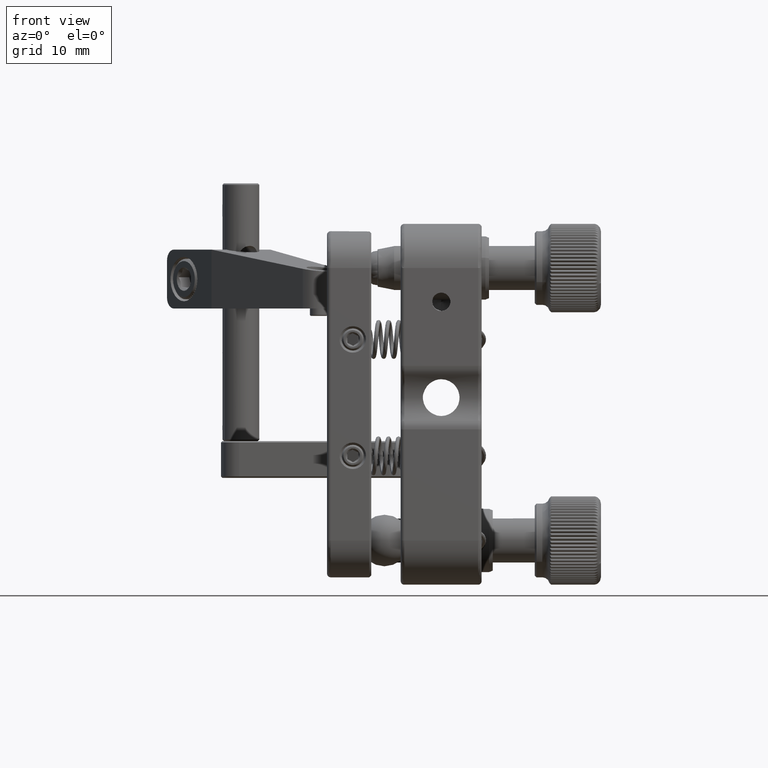
[diagram: clean part render]
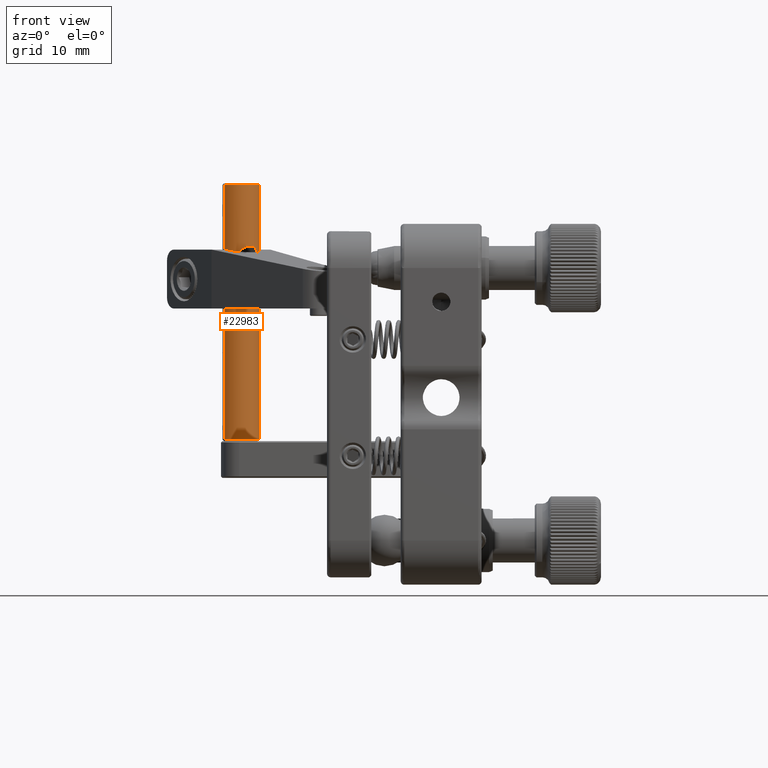
[diagram: same view with one face highlighted and labeled with its STEP entity id]
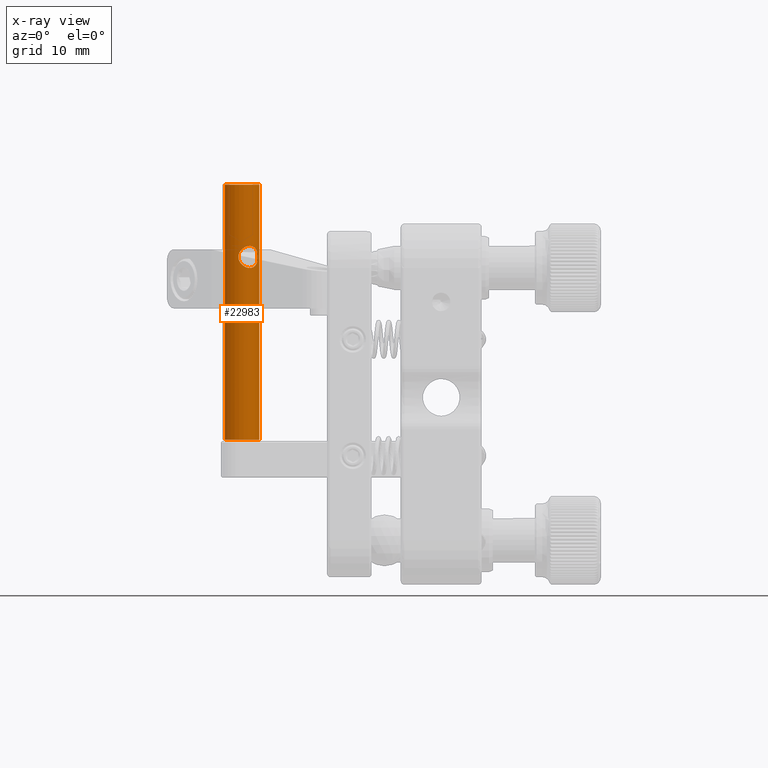
[diagram: x-ray of the same camera — body ghosted, the highlighted face saturated]
A machine part, front view. The second image highlights one B-rep face of the part: STEP entity #22983.
The next image is the same camera in x-ray: the body ghosted, the highlighted face saturated — about 0% of this face is hidden behind the body in this view.
In plain terms, the highlighted cylindrical surface (edge-blend (fillet) strip) has radius 2.5 mm, axis along (-0, -0, 1).
Its self-contained STEP definition (entity closure, byte-faithful):
#825 = ORIENTED_EDGE ( 'NONE', *, *, #1879, .F. ) ;
#1299 = DIRECTION ( 'NONE',  ( 0.000000000000000000, 0.000000000000000000, -1.000000000000000000 ) ) ;
#1879 = EDGE_CURVE ( 'NONE', #13782, #38657, #24559, .T. ) ;
#2383 = CARTESIAN_POINT ( 'NONE',  ( -25.25371530658570052, 21.42382927474743326, 21.19402373094542114 ) ) ;
#4153 = CARTESIAN_POINT ( 'NONE',  ( -26.15629889605073188, 20.71915498037514780, 18.50000000003660361 ) ) ;
#4738 = CARTESIAN_POINT ( 'NONE',  ( -26.34310913079542615, 20.64397965956331760, 18.54183638762389563 ) ) ;
#5323 = CARTESIAN_POINT ( 'NONE',  ( -27.16924797774150235, 20.49576483786606573, 20.92412526796597660 ) ) ;
#6246 = DIRECTION ( 'NONE',  ( -0.8724895318520632381, -0.4886328036558409416, -5.551115123125789013E-15 ) ) ;
#6275 = CARTESIAN_POINT ( 'NONE',  ( -24.95502257947865132, 21.89903102991683781, 20.49090423260270200 ) ) ;
#7286 = EDGE_CURVE ( 'NONE', #56754, #13782, #58164, .T. ) ;
#7705 = VECTOR ( 'NONE', #1299, 1000.000000000000000 ) ;
#8139 = CARTESIAN_POINT ( 'NONE',  ( -27.19999999999999929, 23.00000000000000000, 29.79999999999999716 ) ) ;
#8399 = ORIENTED_EDGE ( 'NONE', *, *, #39871, .F. ) ;
#8633 = CARTESIAN_POINT ( 'NONE',  ( -27.53161430877241500, 20.52209120987488333, 19.90018789465074178 ) ) ;
#8721 = DIRECTION ( 'NONE',  ( -1.420921590666429626E-17, -5.038463501497028334E-17, 1.000000000000000000 ) ) ;
#9228 = CARTESIAN_POINT ( 'NONE',  ( -26.15721279638836805, 20.72573708670011783, 21.48974759251941080 ) ) ;
#9820 = CARTESIAN_POINT ( 'NONE',  ( -27.29680488094143698, 20.50022672557546954, 20.76306412778004784 ) ) ;
#10456 = ORIENTED_EDGE ( 'NONE', *, *, #46138, .F. ) ;
#10459 = CARTESIAN_POINT ( 'NONE',  ( -25.01798006423401333, 21.77646961279045712, 19.23693587212607170 ) ) ;
#10762 = CARTESIAN_POINT ( 'NONE',  ( -25.08082103405560304, 21.66537647838574543, 19.07587473194364591 ) ) ;
#11480 = B_SPLINE_CURVE_WITH_KNOTS ( 'NONE', 3,
 ( #36898, #49735, #9228, #22336, #13399, #27385, #37193, #5323, #9820, #13110, #31244, #8633, #26791, #18450, #45258, #45557, #44965, #50325, #58688, #4738, #4153, #36006 ),
 .UNSPECIFIED., .F., .F.,
 ( 4, 2, 2, 2, 2, 2, 2, 2, 2, 2, 4 ),
 ( 3.701327199592708202E-14, 0.0003006218349003073574, 0.0006012436697636014621, 0.001202487339490195201, 0.001803731009216788398, 0.002404974678943382245, 0.002705596513806679277, 0.003006218348669975442, 0.003607462018396569072, 0.004208705688123162703, 0.004809949357849755899 ),
 .UNSPECIFIED. ) ;
#11639 = CARTESIAN_POINT ( 'NONE',  ( -25.57115897704337470, 21.10117503233506753, 18.58004032886352164 ) ) ;
#13110 = CARTESIAN_POINT ( 'NONE',  ( -27.47781720427663998, 20.51382719637006602, 20.40526734789337837 ) ) ;
#13399 = CARTESIAN_POINT ( 'NONE',  ( -26.43198956054503057, 20.61907175648138590, 21.41995967107436627 ) ) ;
#13782 = VERTEX_POINT ( 'NONE', #19664 ) ;
#14095 = CARTESIAN_POINT ( 'NONE',  ( -29.38122382963015866, 21.77841799086039387, -4.799999999999998934 ) ) ;
#14913 = CARTESIAN_POINT ( 'NONE',  ( -25.64675129711990564, 21.03859860869049214, 18.55000255842619339 ) ) ;
#15509 = CARTESIAN_POINT ( 'NONE',  ( -25.25408723442219738, 21.42343317841943318, 18.80573550632407986 ) ) ;
#16173 = AXIS2_PLACEMENT_3D ( 'NONE', #47052, #52104, #6246 ) ;
#17896 = CARTESIAN_POINT ( 'NONE',  ( -27.19999999999999929, 23.00000000000000000, -4.799999999999984723 ) ) ;
#18450 = CARTESIAN_POINT ( 'NONE',  ( -27.47047037390573720, 20.51455348246761901, 19.60483781209504528 ) ) ;
#18485 = FACE_OUTER_BOUND ( 'NONE', #55416, .T. ) ;
#18586 = CARTESIAN_POINT ( 'NONE',  ( -25.97841799075485625, 20.81877617042881923, 18.50000000000000000 ) ) ;
#19664 = CARTESIAN_POINT ( 'NONE',  ( -29.38122382988070669, 21.77841799130777289, 29.79999999999999716 ) ) ;
#19976 = CARTESIAN_POINT ( 'NONE',  ( -25.01712789726337149, 21.77799568329714219, 20.76073372261325645 ) ) ;
#21245 = VERTEX_POINT ( 'NONE', #25278 ) ;
#21863 = VERTEX_POINT ( 'NONE', #18586 ) ;
#22070 = FACE_BOUND ( 'NONE', #56760, .T. ) ;
#22336 = CARTESIAN_POINT ( 'NONE',  ( -26.33913835137934001, 20.65083117406143387, 21.44999744152133303 ) ) ;
#22983 = ADVANCED_FACE ( 'NONE', ( #22070, #18485 ), #32479, .T. ) ;
#22991 = CARTESIAN_POINT ( 'NONE',  ( -29.38122382963015866, 21.77841799086039742, 12.49999999999999645 ) ) ;
#24151 = CARTESIAN_POINT ( 'NONE',  ( -24.91412059258535550, 21.98769795880460975, 19.79512295497170982 ) ) ;
#24456 = CARTESIAN_POINT ( 'NONE',  ( -24.91899111905241071, 21.97647809026299370, 20.19944540965707347 ) ) ;
#24559 = CIRCLE ( 'NONE', #56917, 2.499999999999997335 ) ;
#25278 = CARTESIAN_POINT ( 'NONE',  ( -25.01877617087093242, 24.22158201003436062, -4.799999999999984723 ) ) ;
#26791 = CARTESIAN_POINT ( 'NONE',  ( -27.51906225646433768, 20.52032302684918363, 19.80055459031399678 ) ) ;
#27385 = CARTESIAN_POINT ( 'NONE',  ( -26.70067982525921479, 20.54331184179423175, 21.30526873808661747 ) ) ;
#27549 = ORIENTED_EDGE ( 'NONE', *, *, #7286, .F. ) ;
#27838 = ORIENTED_EDGE ( 'NONE', *, *, #53909, .F. ) ;
#31244 = CARTESIAN_POINT ( 'NONE',  ( -27.53117365542777861, 20.52203226457731233, 20.20487704499671011 ) ) ;
#32265 = VERTEX_POINT ( 'NONE', #40674 ) ;
#32479 = CYLINDRICAL_SURFACE ( 'NONE', #39007, 2.500000000000000444 ) ;
#33680 = CARTESIAN_POINT ( 'NONE',  ( -24.93945978468612168, 21.93203157835909778, 20.39516218789935564 ) ) ;
#33964 = CARTESIAN_POINT ( 'NONE',  ( -25.88959715271154494, 20.86851977597614649, 18.50000000000074962 ) ) ;
#36006 = CARTESIAN_POINT ( 'NONE',  ( -25.97841799075485625, 20.81877617042881923, 18.50000000000000000 ) ) ;
#36898 = CARTESIAN_POINT ( 'NONE',  ( -25.97841799110192085, 20.81877617023443605, 21.50000000000000000 ) ) ;
#37193 = CARTESIAN_POINT ( 'NONE',  ( -26.87242662686354677, 20.51709139931552883, 21.19426449358434894 ) ) ;
#37843 = CARTESIAN_POINT ( 'NONE',  ( -25.80567185425235621, 20.92261559339501531, 18.51025240745087785 ) ) ;
#38137 = CARTESIAN_POINT ( 'NONE',  ( -25.80053708590764572, 20.91839736020077467, 21.50000000004273915 ) ) ;
#38241 = CARTESIAN_POINT ( 'NONE',  ( -25.01877617087094308, 24.22158201003435352, 12.49999999999999645 ) ) ;
#38657 = VERTEX_POINT ( 'NONE', #39751 ) ;
#39007 = AXIS2_PLACEMENT_3D ( 'NONE', #17896, #54255, #45891 ) ;
#39751 = CARTESIAN_POINT ( 'NONE',  ( -25.01877617062038794, 24.22158200958697805, 29.79999999999999716 ) ) ;
#39871 = EDGE_CURVE ( 'NONE', #21863, #32265, #45596, .T. ) ;
#39929 = CIRCLE ( 'NONE', #16173, 2.499999999999997335 ) ;
#40310 = DIRECTION ( 'NONE',  ( -0.8724895318520632381, -0.4886328036558409416, 0.000000000000000000 ) ) ;
#40674 = CARTESIAN_POINT ( 'NONE',  ( -25.97841799110192085, 20.81877617023443605, 21.50000000000000000 ) ) ;
#42330 = CARTESIAN_POINT ( 'NONE',  ( -24.91394062174427404, 21.98810448115606420, 20.09981210531430662 ) ) ;
#42629 = CARTESIAN_POINT ( 'NONE',  ( -25.07978999458059732, 21.66694043798437264, 20.92217592066144860 ) ) ;
#42734 = LINE ( 'NONE', #38241, #7705 ) ;
#44965 = CARTESIAN_POINT ( 'NONE',  ( -27.17112018745346091, 20.49570284922439001, 19.07782407936126390 ) ) ;
#45258 = CARTESIAN_POINT ( 'NONE',  ( -27.43420113762307722, 20.51058116845053902, 19.50909576739390516 ) ) ;
#45557 = CARTESIAN_POINT ( 'NONE',  ( -27.29855132779134763, 20.50029745714893181, 19.23926627740336315 ) ) ;
#45596 = B_SPLINE_CURVE_WITH_KNOTS ( 'NONE', 3,
 ( #51541, #33964, #37843, #14913, #11639, #47954, #15509, #10762, #10459, #47076, #24151, #42330, #24456, #33680, #6275, #19976, #42629, #2383, #47374, #55733, #38137, #52129 ),
 .UNSPECIFIED., .F., .F.,
 ( 4, 2, 2, 2, 2, 2, 2, 2, 2, 2, 4 ),
 ( 1.081531119589811325E-13, 0.0003006218349971969761, 0.0006012436698862407740, 0.001202487339664315034, 0.001803731009442389186, 0.002404974679220463554, 0.002705596514109505184, 0.003006218348998548114, 0.003607462018776637445, 0.004208705688554727209, 0.004809949358332817407 ),
 .UNSPECIFIED. ) ;
#45891 = DIRECTION ( 'NONE',  ( 0.4886328036558403309, -0.8724895318520635712, -4.857225732735059075E-15 ) ) ;
#46138 = EDGE_CURVE ( 'NONE', #21245, #56754, #39929, .T. ) ;
#47052 = CARTESIAN_POINT ( 'NONE',  ( -27.19999999999999929, 23.00000000000000000, -4.799999999999984723 ) ) ;
#47076 = CARTESIAN_POINT ( 'NONE',  ( -24.93500197164123477, 21.93791641570159712, 19.59473265204441361 ) ) ;
#47374 = CARTESIAN_POINT ( 'NONE',  ( -25.36393229326742826, 21.29297065561667424, 21.30367069176718786 ) ) ;
#47954 = CARTESIAN_POINT ( 'NONE',  ( -25.36617777606943847, 21.29069212995623062, 18.69473126182802858 ) ) ;
#49735 = CARTESIAN_POINT ( 'NONE',  ( -26.06723882927093072, 20.76903256463191028, 21.49999999995823785 ) ) ;
#50325 = CARTESIAN_POINT ( 'NONE',  ( -26.87295868328126858, 20.51698122437336380, 18.80597626910266484 ) ) ;
#50931 = EDGE_CURVE ( 'NONE', #38657, #21245, #42734, .T. ) ;
#51541 = CARTESIAN_POINT ( 'NONE',  ( -25.97841799075485625, 20.81877617042881923, 18.50000000000000000 ) ) ;
#52104 = DIRECTION ( 'NONE',  ( 1.818779636053029922E-15, 6.449233281916196267E-15, -1.000000000000000000 ) ) ;
#52129 = CARTESIAN_POINT ( 'NONE',  ( -25.97841799110192085, 20.81877617023443605, 21.50000000000000000 ) ) ;
#53909 = EDGE_CURVE ( 'NONE', #32265, #21863, #11480, .T. ) ;
#54255 = DIRECTION ( 'NONE',  ( -1.818779636053029922E-15, -6.449233281916196267E-15, 1.000000000000000000 ) ) ;
#54879 = DIRECTION ( 'NONE',  ( 0.000000000000000000, 0.000000000000000000, 1.000000000000000000 ) ) ;
#55416 = EDGE_LOOP ( 'NONE', ( #825, #27549, #10456, #56077 ) ) ;
#55733 = CARTESIAN_POINT ( 'NONE',  ( -25.63883468893371287, 21.03840455806620824, 21.45816361241782033 ) ) ;
#56077 = ORIENTED_EDGE ( 'NONE', *, *, #50931, .F. ) ;
#56754 = VERTEX_POINT ( 'NONE', #14095 ) ;
#56760 = EDGE_LOOP ( 'NONE', ( #27838, #8399 ) ) ;
#56917 = AXIS2_PLACEMENT_3D ( 'NONE', #8139, #8721, #40310 ) ;
#58164 = LINE ( 'NONE', #22991, #58941 ) ;
#58688 = CARTESIAN_POINT ( 'NONE',  ( -26.70379583001310664, 20.54258769679054097, 18.69632930827027906 ) ) ;
#58941 = VECTOR ( 'NONE', #54879, 1000.000000000000000 ) ;